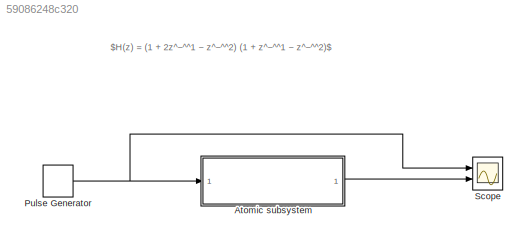
MODEL slx_59086248c320
KIND model
CONFIG AbsTol = auto
CONFIG EnableMultiTasking = off
CONFIG FixedStep = auto
CONFIG MaxStep = auto
CONFIG MinStep = auto
CONFIG RelTol = 1e-3
CONFIG SampleTimeConstraint = Unconstrained
CONFIG SolverName = VariableStepAuto
CONFIG StartTime = 0.0
CONFIG StopTime = 10.0
BLOCK [ModelReference] Atomic subsystem
  ModelNameDialog = subsystem
  ModelReferenceVersion = 1.2
  Ports = [1, 1]
BLOCK [DiscretePulseGenerator] Pulse Generator
  Period = 10
  Ports = [0, 1]
  PulseType = Time based
  PulseWidth = 5
BLOCK [Scope] Scope
  Floating = off
  NumInputPorts = 2
  Ports = [2]
  ScopeSpecificationString = Simulink.scopes.TimeScopeBlockCfg('CurrentConfiguration', extmgr.ConfigurationSet(extmgr.Configuration('Core','General UI',true),extmgr.Configuration('Core','Source UI',true),extmgr.Configuration('Sources','WiredSimulink',true),extmgr.Configuration('Visuals','Time Domain',true,'SerializedDisplays',{struct('MinYLimReal','-2.5','MaxYLimReal','2.5','YLabelReal','','MinYLimMag','0.00000','MaxYLimMag',...<+1312ch>
ANNOTATION (root): $H(z) = (1 + 2z^−^^1 − z^−^^2) (1 + z^−^^1 − z^−^^2)$
LINE Atomic subsystem:1 -> Scope:2
NET Pulse Generator:1 -> Atomic subsystem:1, Scope:1
note: NET lines group one-source signal fan-out (src -> all destinations, sorted); 1:1 wires keep LINE
